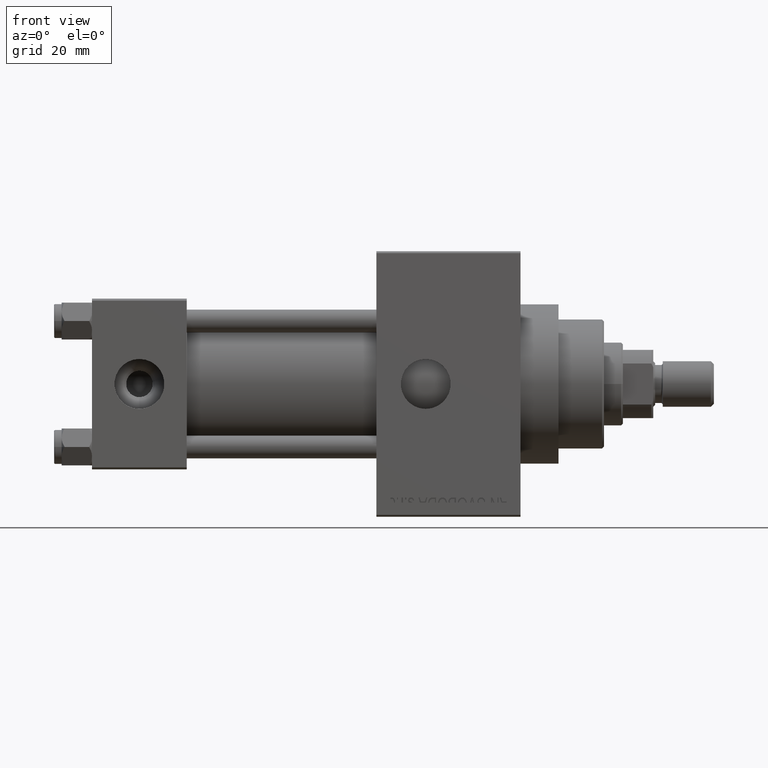
[diagram: clean part render]
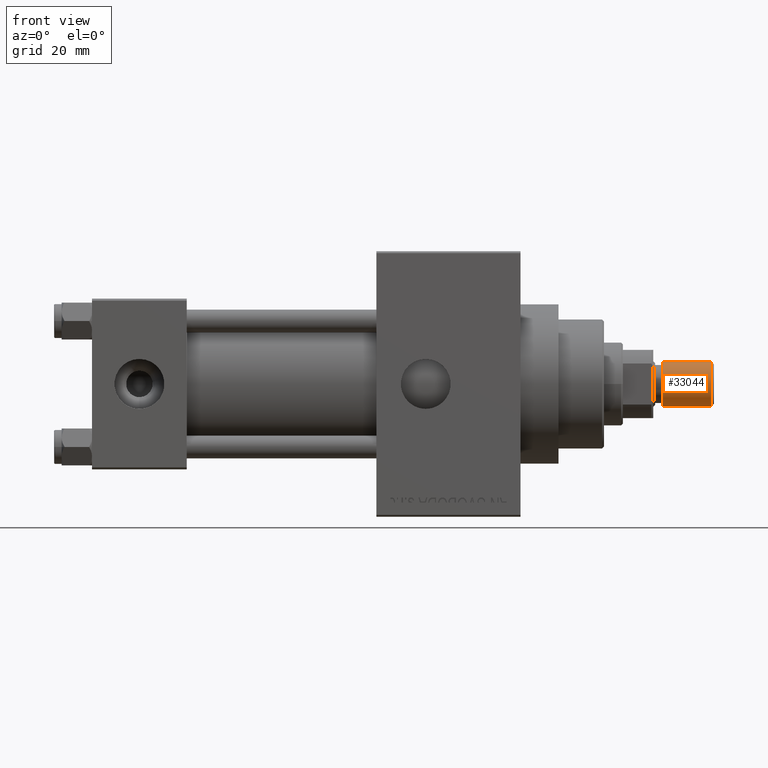
[diagram: same view with one face highlighted and labeled with its STEP entity id]
A machine part, front view. The second image highlights one B-rep face of the part: STEP entity #33044.
In plain terms, the highlighted cylindrical surface (edge-blend (fillet) strip) has radius 6 mm, axis along (1, -0, -0).
Its self-contained STEP definition (entity closure, byte-faithful):
#4477 = VERTEX_POINT ( 'NONE', #32620 ) ;
#5193 = FACE_OUTER_BOUND ( 'NONE', #9611, .T. ) ;
#7928 = DIRECTION ( 'NONE',  ( 0.000000000000000000, 0.000000000000000000, 1.000000000000000000 ) ) ;
#9611 = EDGE_LOOP ( 'NONE', ( #21299, #36936, #41004, #16132 ) ) ;
#9867 = CIRCLE ( 'NONE', #17577, 6.000000000000000888 ) ;
#10550 = CARTESIAN_POINT ( 'NONE',  ( -6.000000000000000888, 0.000000000000000000, 13.50000000000000000 ) ) ;
#11462 = CARTESIAN_POINT ( 'NONE',  ( 6.000000000000000888, 7.347880794884120722E-16, 13.50000000000000000 ) ) ;
#11607 = DIRECTION ( 'NONE',  ( 1.000000000000000000, 0.000000000000000000, 0.000000000000000000 ) ) ;
#12039 = VERTEX_POINT ( 'NONE', #11462 ) ;
#16132 = ORIENTED_EDGE ( 'NONE', *, *, #28853, .T. ) ;
#17577 = AXIS2_PLACEMENT_3D ( 'NONE', #33033, #26531, #11607 ) ;
#19395 = CYLINDRICAL_SURFACE ( 'NONE', #26181, 6.000000000000000888 ) ;
#19491 = EDGE_CURVE ( 'NONE', #25027, #12039, #47423, .T. ) ;
#19513 = CARTESIAN_POINT ( 'NONE',  ( 6.000000000000000888, 7.347880794884120722E-16, 0.8000000000000055955 ) ) ;
#21299 = ORIENTED_EDGE ( 'NONE', *, *, #41946, .F. ) ;
#22613 = DIRECTION ( 'NONE',  ( 1.000000000000000000, 0.000000000000000000, 0.000000000000000000 ) ) ;
#25027 = VERTEX_POINT ( 'NONE', #38668 ) ;
#25632 = VECTOR ( 'NONE', #46663, 1000.000000000000000 ) ;
#26181 = AXIS2_PLACEMENT_3D ( 'NONE', #37456, #27321, #34320 ) ;
#26531 = DIRECTION ( 'NONE',  ( -0.000000000000000000, -0.000000000000000000, 1.000000000000000000 ) ) ;
#27321 = DIRECTION ( 'NONE',  ( -0.000000000000000000, -0.000000000000000000, -1.000000000000000000 ) ) ;
#28853 = EDGE_CURVE ( 'NONE', #4477, #44625, #9867, .T. ) ;
#31231 = CARTESIAN_POINT ( 'NONE',  ( 6.000000000000000888, 7.347880794884120722E-16, 13.50000000000000000 ) ) ;
#32620 = CARTESIAN_POINT ( 'NONE',  ( -6.000000000000000888, 0.000000000000000000, 0.8000000000000055955 ) ) ;
#33033 = CARTESIAN_POINT ( 'NONE',  ( 0.000000000000000000, 0.000000000000000000, 0.8000000000000055955 ) ) ;
#33044 = ADVANCED_FACE ( 'NONE', ( #5193 ), #19395, .T. ) ;
#33289 = VECTOR ( 'NONE', #35082, 1000.000000000000000 ) ;
#34320 = DIRECTION ( 'NONE',  ( -1.000000000000000000, 0.000000000000000000, 0.000000000000000000 ) ) ;
#35082 = DIRECTION ( 'NONE',  ( -0.000000000000000000, -0.000000000000000000, -1.000000000000000000 ) ) ;
#35593 = LINE ( 'NONE', #10550, #25632 ) ;
#36936 = ORIENTED_EDGE ( 'NONE', *, *, #19491, .F. ) ;
#37456 = CARTESIAN_POINT ( 'NONE',  ( 0.000000000000000000, 0.000000000000000000, 13.50000000000000000 ) ) ;
#38668 = CARTESIAN_POINT ( 'NONE',  ( -6.000000000000000888, 0.000000000000000000, 13.50000000000000000 ) ) ;
#38962 = AXIS2_PLACEMENT_3D ( 'NONE', #40897, #7928, #22613 ) ;
#40897 = CARTESIAN_POINT ( 'NONE',  ( 0.000000000000000000, 0.000000000000000000, 13.50000000000000000 ) ) ;
#41004 = ORIENTED_EDGE ( 'NONE', *, *, #43402, .T. ) ;
#41946 = EDGE_CURVE ( 'NONE', #12039, #44625, #45453, .T. ) ;
#43402 = EDGE_CURVE ( 'NONE', #25027, #4477, #35593, .T. ) ;
#44625 = VERTEX_POINT ( 'NONE', #19513 ) ;
#45453 = LINE ( 'NONE', #31231, #33289 ) ;
#46663 = DIRECTION ( 'NONE',  ( -0.000000000000000000, -0.000000000000000000, -1.000000000000000000 ) ) ;
#47423 = CIRCLE ( 'NONE', #38962, 6.000000000000000888 ) ;